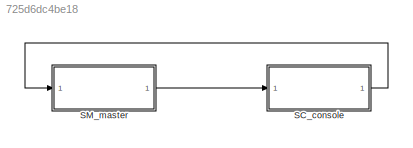
MODEL slx_725d6dc4be18
KIND model
CONFIG AbsTol = auto
CONFIG EnableMultiTasking = on
CONFIG FixedStep = 0.001
CONFIG MaxStep = auto
CONFIG MinStep = auto
CONFIG RelTol = 1e-3
CONFIG SampleTimeConstraint = Unconstrained
CONFIG SolverName = ode4
CONFIG StartTime = 0.0
CONFIG StopTime = inf
WORKSPACE source: MATLAB code (in-file)
WORKSPACE code: addpath src\model
WORKSPACE code: addpath src\utils
WORKSPACE utils = StateMachineUtils
WORKSPACE utils = utils.loadEventsInAds('resources/tct/ALLEVENT.ADS')
WORKSPACE utils = utils.loadDisabledEventsInPdt('resources/tct/supervisor1/DATA_SIMSUP1_MG1.PDT')
WORKSPACE utils = utils.loadTransitionsInAds('resources/tct/supervisor1/SIMSUP1_MG1.ADS')
WORKSPACE encodedStates = StateEncoder.encode(utils.statesArray)
WORKSPACE transitions = utils.transitions
WORKSPACE allEvents = utils.eventsArray
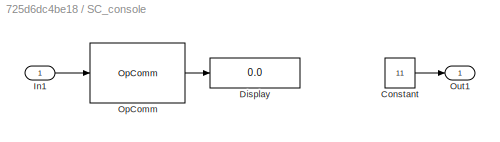
BLOCK [SubSystem] SC_console
  Ports = [1, 1]
  RequestExecContextInheritance = off
BLOCK [Constant] SC_console/Constant
  Value = 11
BLOCK [Display] SC_console/Display
  Decimation = 1
  Ports = [1]
BLOCK [Inport] SC_console/In1
BLOCK [Reference] SC_console/OpComm  REF=rtlab/OpComm
  Ports = [1, 1]
  SourceBlock = rtlab/OpComm
  SourceProductName = RT-LAB
  SourceType = RT-LAB OpComm
BLOCK [Outport] SC_console/Out1
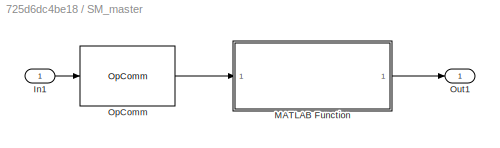
BLOCK [SubSystem] SM_master
  Ports = [1, 1]
  RequestExecContextInheritance = off
BLOCK [Inport] SM_master/In1
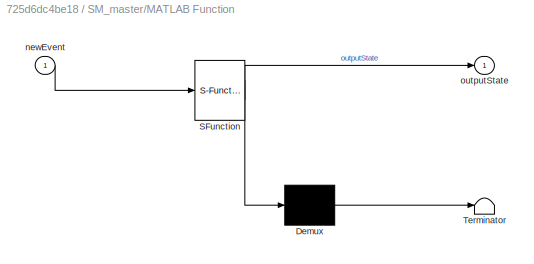
BLOCK [SubSystem] SM_master/MATLAB Function
  ErrorFcn = Stateflow.Translate.translate
  PermitHierarchicalResolution = ExplicitOnly
  Ports = [1, 1]
  RequestExecContextInheritance = off
  SFBlockType = MATLAB Function
  TreatAsAtomicUnit = on
BLOCK [Demux] SM_master/MATLAB Function/ Demux 
  Outputs = 1
  Ports = [1, 1]
BLOCK [S-Function] SM_master/MATLAB Function/ SFunction 
  EnableBusSupport = on
  FunctionName = sf_sfun
  Parameters = allEvents,encodedStates,transitions
  PortCounts = [1 2]
  Ports = [1, 2]
  SFcnIsStateOwnerBlock = off
  SFunctionDeploymentMode = off
  Tag = Stateflow S-Function 2
BLOCK [Terminator] SM_master/MATLAB Function/ Terminator 
BLOCK [Inport] SM_master/MATLAB Function/newEvent
BLOCK [Outport] SM_master/MATLAB Function/outputState
BLOCK [Reference] SM_master/OpComm  REF=rtlab/OpComm
  Ports = [1, 1]
  SourceBlock = rtlab/OpComm
  SourceProductName = RT-LAB
  SourceType = RT-LAB OpComm
BLOCK [Outport] SM_master/Out1
LINE SC_console/Constant:1 -> SC_console/Out1:1
LINE SC_console/In1:1 -> SC_console/OpComm:1
LINE SC_console/OpComm:1 -> SC_console/Display:1
LINE SC_console:1 -> SM_master:1
LINE SM_master/In1:1 -> SM_master/OpComm:1
LINE SM_master/MATLAB Function:1 -> SM_master/Out1:1
LINE SM_master/OpComm:1 -> SM_master/MATLAB Function:1
LINE SM_master:1 -> SC_console:1
CHART SM_master/MATLAB Function states=1 transitions=1
  STATE_LABEL 'eML_blk_kernel()'
  STATE_LABEL 'SCRIPT:\nfunction outputState  = stateMachine(newEvent, allEvents, transitions, encodedStates)\n% State Machine with parameters from files.\n\n% Initialize a persistent object. Its value will not be erased as this\n% block finishes.\npersistent stateMachine\n\n% Assign the persistent object to the StateMachine class with data passed\n% as parameters.\nif (isempty(stateMachine))\n    statesArray = StateEncode...<+317ch>'
CHART  states=0 transitions=0
